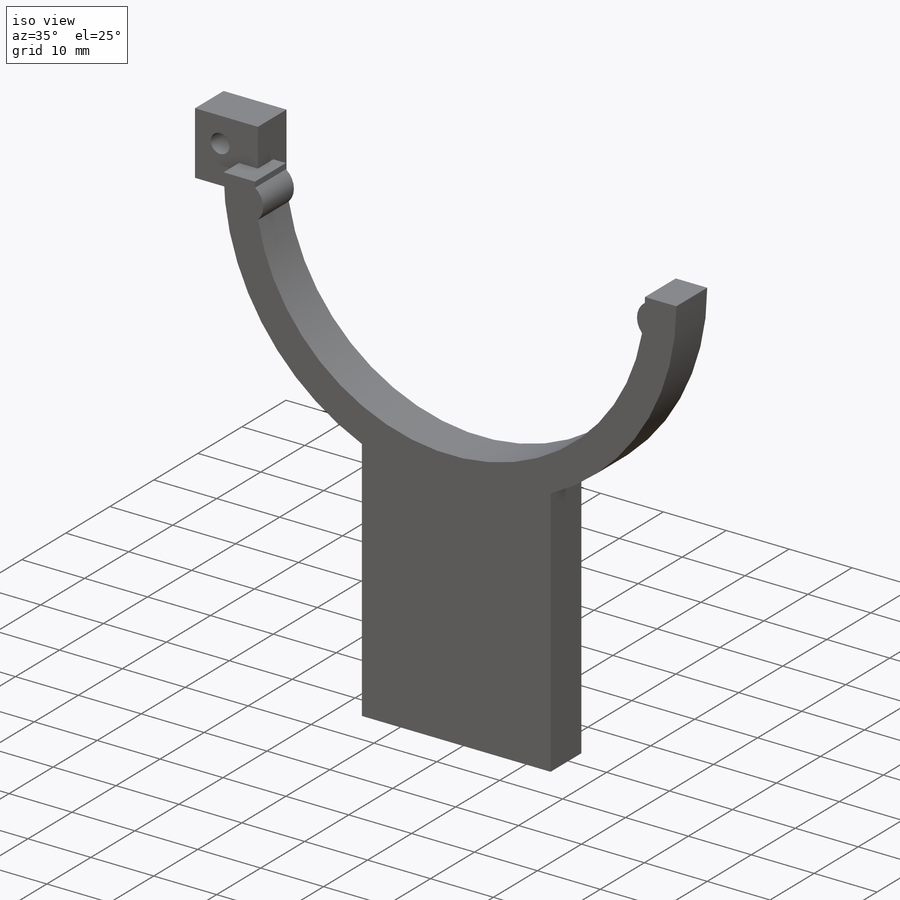
[diagram: iso view]
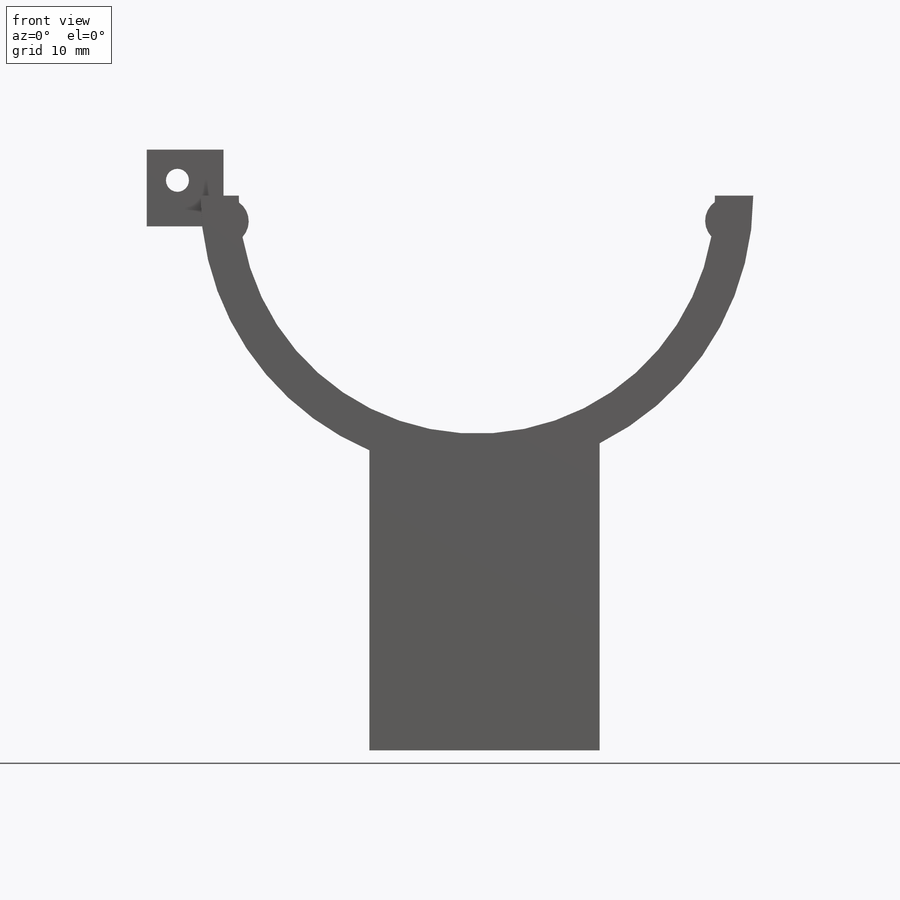
[diagram: front view]
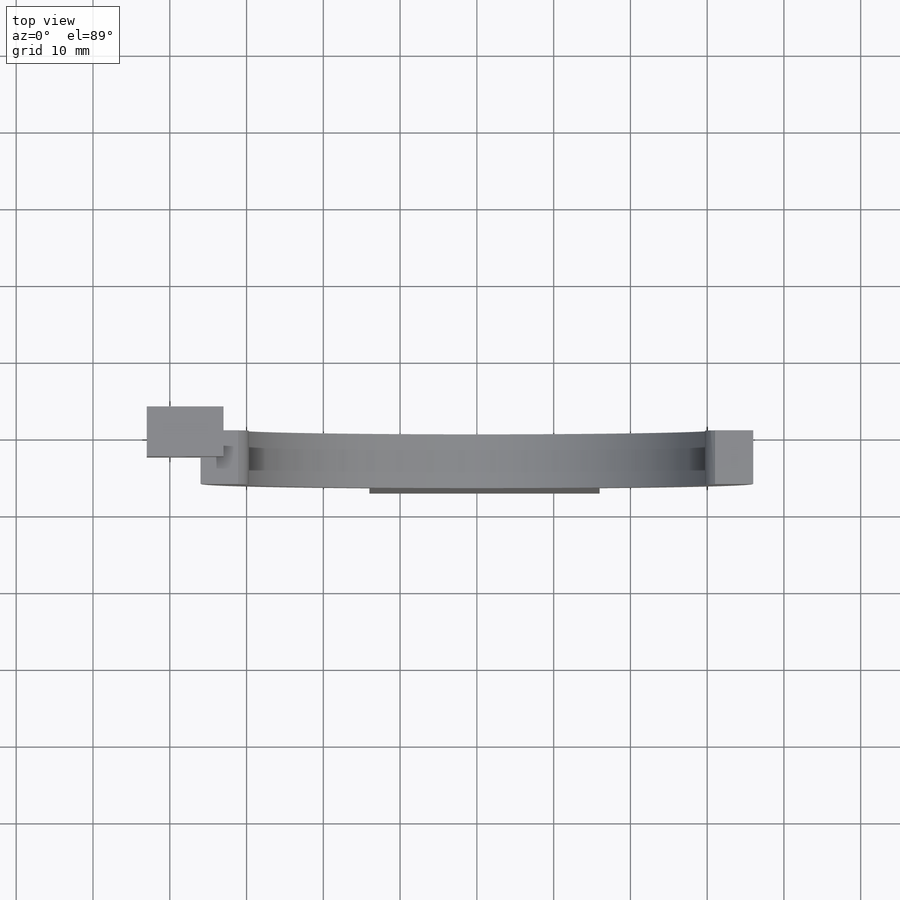
[diagram: top view]
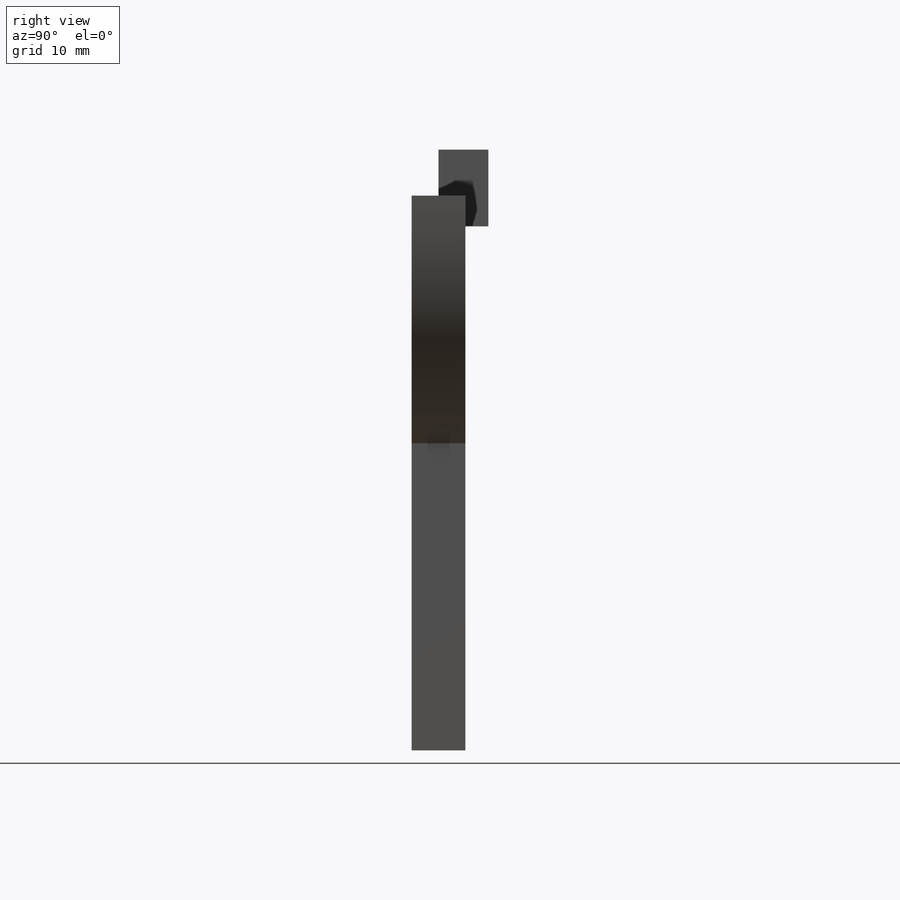
[diagram: right view]
SOLIDWORKS PART (.sldprt)
format: sldprt  version: not decoded by parser v0  size: 255,488 bytes
history: native  units: mm
features: sketch x5, fillet x5, extrude x3, cut_extrude x2, material x1 (+13 scaffold rows collapsed)
feature tree (29):
  scaffold x13  (default folders/planes/origin — collapsed)
  material  "Material <not specified>"
  sketch  "Sketch1"  dims[c1.D2=39.0mm c1.D3=~113.874241mm c1.D4=50.0mm c1.D8=6.0mm c1.D9=6.0mm c1.D1=0.0mm c2.D3=0.0mm c2.D5=35.5mm c2.D6=25.0mm c2.D7=0.0mm c3.D5=25.0mm c3.D9=~32.055861mm c3.D10=15.0mm c3.D11=25.0mm c3.D12=30.0mm c3.D13=~51.078212mm c4.D13=90.0deg c4.D14=40.0mm c4.D10=25.0mm c4.D12=20.0mm c5.D14=40.0mm c5.D15=40.0mm c5.D8=25.0mm c5.D9=40.0mm c5.D11=40.0mm c5.D12=15.0mm c6.D11=20.0mm c6.D9=40.0mm c6.D12=40.0mm]
  extrude  "Boss-Extrude8"  Depth=12mm
  sketch  "Sketch4"  dims[D1=4.0mm D2=0.0mm D3=4.0mm D4=8.0mm]
  extrude  "Boss-Extrude10"  Depth=12mm
  sketch  "Sketch5"  dims[c1.D1=3.0mm c1.D2=3.0mm c1.D3=3.0mm c2.D2=3.5mm c2.D3=6.0mm]
  cut_extrude  "Cut-Extrude2"  Depth=12mm
  sketch  "Sketch6"  dims[D1=3.0mm D2=4.5mm D3=10.0mm D4=9.0mm]
  extrude  "Boss-Extrude11"  Depth=5.8mm
  sketch  "Sketch7"  dims[c1.D1=3.0mm c1.D2=3.0mm c1.D3=3.0mm c2.D2=4.0mm c2.D3=4.0mm]
  cut_extrude  "Cut-Extrude3"  Depth=10mm
  fillet  "Fillet1"  Radius=3mm
  fillet  "Fillet3"  Radius=3mm
  fillet  "Fillet4"  Radius=3mm
  fillet  "Fillet5"  Radius=3mm
  fillet  "Fillet6"  Radius=3mm
decode coverage: 15 of 15 modeling features carry decoded parameters
note: ~ marks probable driven/reference dimensions
note: suppression state not decoded; provenance and decode notes live in map.json
